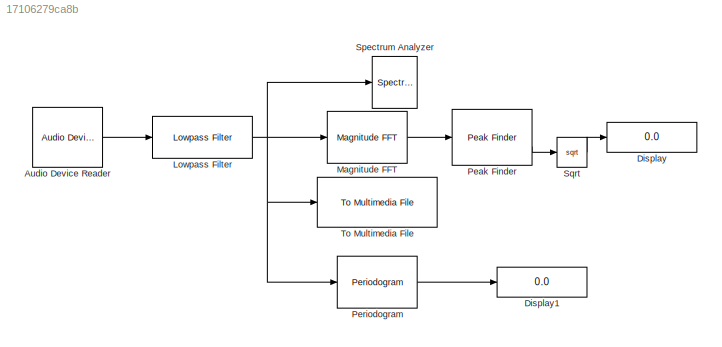
MODEL slx_17106279ca8b
KIND model
CONFIG AbsTol = auto
CONFIG EnableMultiTasking = off
CONFIG FixedStep = auto
CONFIG MaxStep = auto
CONFIG MinStep = auto
CONFIG RelTol = 1e-3
CONFIG SampleTimeConstraint = Unconstrained
CONFIG Solver = VariableStepAuto
CONFIG SolverName = VariableStepAuto
CONFIG StartTime = 0.0
CONFIG StopTime = 10.0
BLOCK [Reference] Audio Device Reader  REF=audiosources/Audio Device
Reader
  Ports = [0, 1]
  SourceBlock = audiosources/Audio Device\nReader
  SourceProductBaseCode = AU
  SourceProductName = Audio System Toolbox
  SourceType = Audio Device Reader
BLOCK [Display] Display
  Decimation = 1
  Ports = [1]
BLOCK [Display] Display1
  Decimation = 1
  Ports = [1]
BLOCK [Reference] Lowpass Filter  REF=dspfdesign/Lowpass Filter
  Ports = [1, 1]
  SourceBlock = dspfdesign/Lowpass Filter
  SourceProductBaseCode = DS
  SourceProductName = DSP System Toolbox
  SourceType = dsp.LowpassFilter
BLOCK [Reference] Magnitude FFT  REF=dspspect3/Magnitude
FFT
  Ports = [1, 1]
  SourceBlock = dspspect3/Magnitude\nFFT
  SourceProductBaseCode = DS
  SourceProductName = DSP System Toolbox
  SourceType = Magnitude FFT
BLOCK [Reference] Peak Finder  REF=dspsigops/Peak Finder
  Ports = [1, 2]
  SourceBlock = dspsigops/Peak Finder
  SourceProductBaseCode = DS
  SourceProductName = DSP System Toolbox
  SourceType = Peak Finder
BLOCK [Reference] Periodogram  REF=dspspect3/Periodogram
  Ports = [1, 1]
  SourceBlock = dspspect3/Periodogram
  SourceProductBaseCode = DS
  SourceProductName = DSP System Toolbox
  SourceType = Periodogram
BLOCK [SpectrumAnalyzer] Spectrum Analyzer
  Ports = [1]
  ScopeSpecificationString = spbscopes.SpectrumAnalyzerBlockCfg('CurrentConfiguration', extmgr.ConfigurationSet(extmgr.Configuration('Core','General UI',true),extmgr.Configuration('Core','Source UI',true),extmgr.Configuration('Sources','WiredSimulink',true),extmgr.Configuration('Visuals','Spectrum',true,'AxesProperties',struct('Color',{[0 0 0],[0 0 0]},'XColor',{[0.686274509803922 0.686274509803922 0.686274509803922],[0.68627...<+2064ch>
BLOCK [Sqrt] Sqrt
BLOCK [Reference] To Multimedia File  REF=dspvision/To Multimedia File
  Ports = [1]
  SourceBlock = dspvision/To Multimedia File
  SourceProductBaseCode = VP
  SourceProductName = Computer Vision System Toolbox
  SourceType = To Multimedia File
LINE Audio Device Reader:1 -> Lowpass Filter:1
NET Lowpass Filter:1 -> Magnitude FFT:1, Periodogram:1, Spectrum Analyzer:1, To Multimedia File:1
LINE Magnitude FFT:1 -> Peak Finder:1
LINE Peak Finder:2 -> Sqrt:1
LINE Periodogram:1 -> Display1:1
LINE Sqrt:1 -> Display:1
note: NET lines group one-source signal fan-out (src -> all destinations, sorted); 1:1 wires keep LINE
